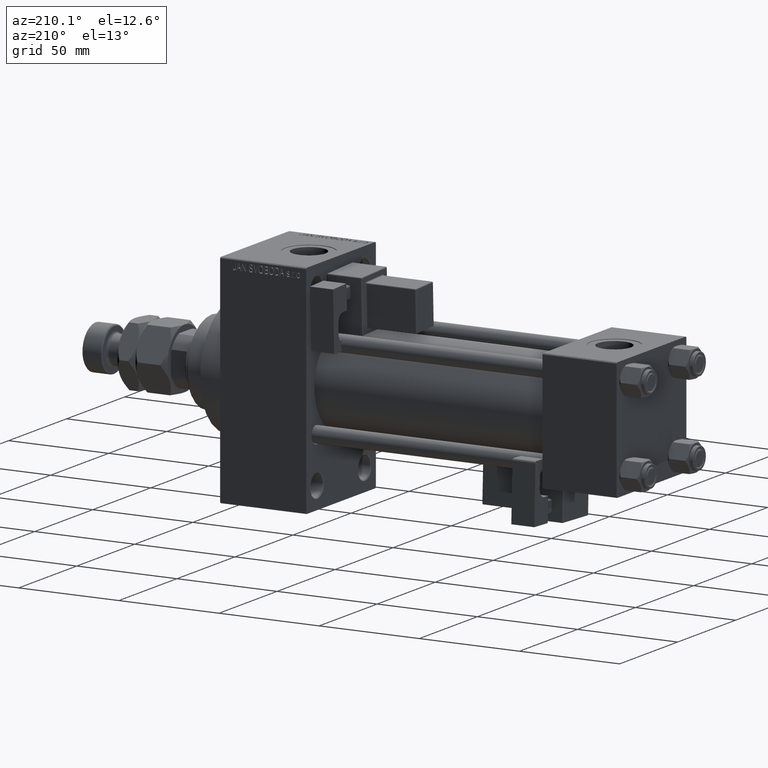
[diagram: clean part render]
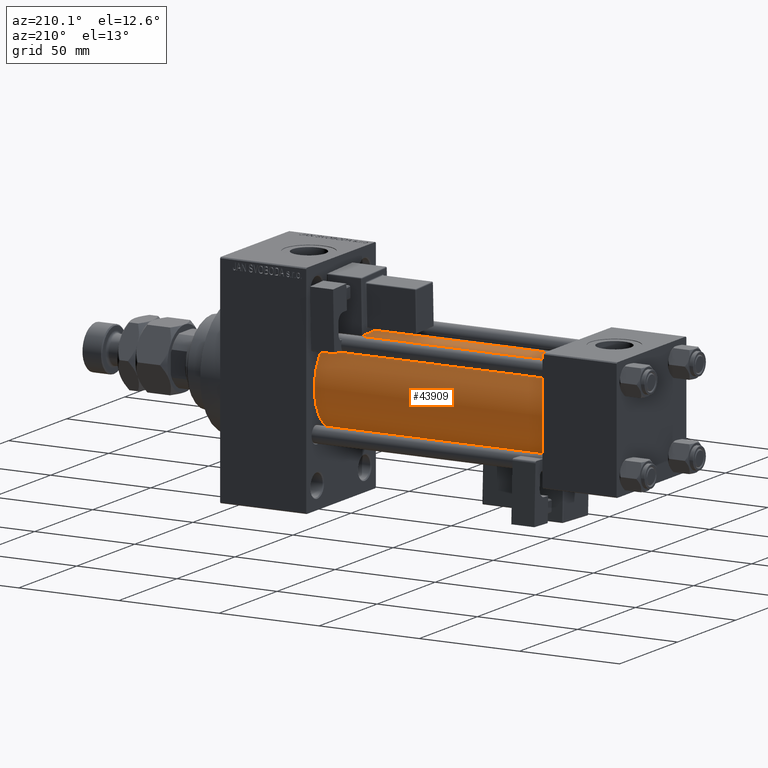
[diagram: same view with one face highlighted and labeled with its STEP entity id]
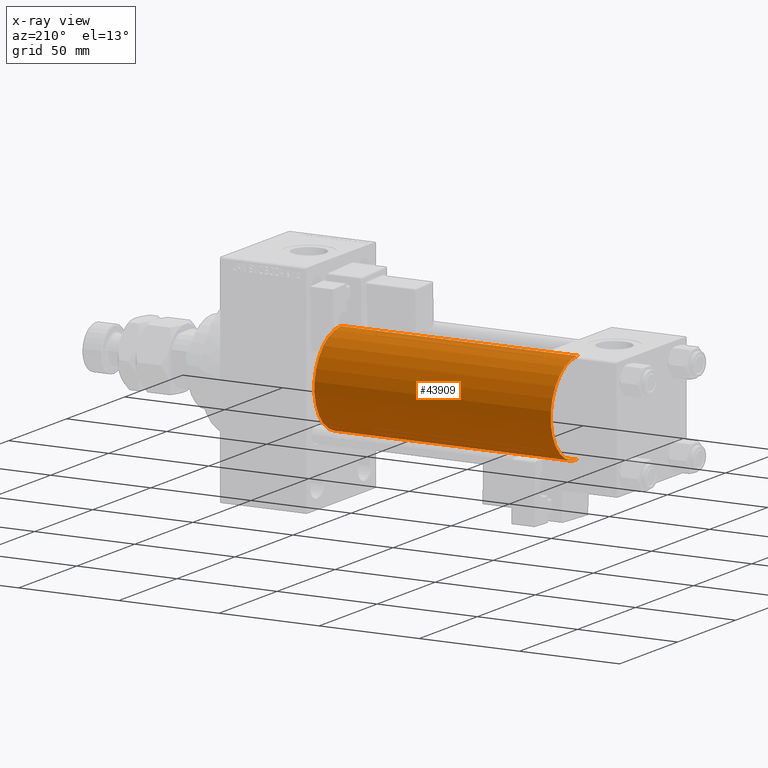
[diagram: x-ray of the same camera — body ghosted, the highlighted face saturated]
A machine part, auxiliary view. The second image highlights one B-rep face of the part: STEP entity #43909.
The next image is the same camera in x-ray: the body ghosted, the highlighted face saturated — about 0% of this face is hidden behind the body in this view.
In plain terms, the highlighted cylindrical surface (partial cylindrical patch) has radius 23 mm, axis along (-1, -0, -0).
Its self-contained STEP definition (entity closure, byte-faithful):
#201 = CARTESIAN_POINT ( 'NONE',  ( 155.0000000000000000, -2.602085213965210642E-15, 0.000000000000000000 ) ) ;
#3127 = EDGE_CURVE ( 'NONE', #23561, #37487, #39607, .T. ) ;
#3834 = EDGE_CURVE ( 'NONE', #37487, #28163, #11413, .T. ) ;
#3949 = AXIS2_PLACEMENT_3D ( 'NONE', #49096, #44934, #13732 ) ;
#6366 = VERTEX_POINT ( 'NONE', #49666 ) ;
#7235 = FACE_OUTER_BOUND ( 'NONE', #39315, .T. ) ;
#10951 = CARTESIAN_POINT ( 'NONE',  ( 37.00000000000000711, -2.602085213965210642E-15, 23.00000000000000000 ) ) ;
#11413 = CIRCLE ( 'NONE', #3949, 23.00000000000000000 ) ;
#12163 = DIRECTION ( 'NONE',  ( 1.000000000000000000, 0.000000000000000000, 0.000000000000000000 ) ) ;
#13732 = DIRECTION ( 'NONE',  ( 0.000000000000000000, 0.000000000000000000, 1.000000000000000000 ) ) ;
#15555 = DIRECTION ( 'NONE',  ( 0.000000000000000000, 0.000000000000000000, -1.000000000000000000 ) ) ;
#16056 = DIRECTION ( 'NONE',  ( -1.000000000000000000, -0.000000000000000000, -0.000000000000000000 ) ) ;
#16461 = CARTESIAN_POINT ( 'NONE',  ( 155.0000000000000000, 2.146024240737016609E-16, -23.00000000000000000 ) ) ;
#20107 = DIRECTION ( 'NONE',  ( -1.000000000000000000, -0.000000000000000000, -0.000000000000000000 ) ) ;
#20167 = LINE ( 'NONE', #24082, #48566 ) ;
#21469 = ORIENTED_EDGE ( 'NONE', *, *, #27250, .F. ) ;
#23116 = CYLINDRICAL_SURFACE ( 'NONE', #48380, 23.00000000000000000 ) ;
#23561 = VERTEX_POINT ( 'NONE', #27085 ) ;
#24082 = CARTESIAN_POINT ( 'NONE',  ( 155.0000000000000000, -2.602085213965210642E-15, 23.00000000000000000 ) ) ;
#24319 = ORIENTED_EDGE ( 'NONE', *, *, #3834, .T. ) ;
#27085 = CARTESIAN_POINT ( 'NONE',  ( 155.0000000000000000, 2.146024240737016609E-16, -23.00000000000000000 ) ) ;
#27250 = EDGE_CURVE ( 'NONE', #6366, #28163, #20167, .T. ) ;
#28163 = VERTEX_POINT ( 'NONE', #10951 ) ;
#30503 = VECTOR ( 'NONE', #20107, 1000.000000000000000 ) ;
#31865 = DIRECTION ( 'NONE',  ( -1.000000000000000000, -0.000000000000000000, -0.000000000000000000 ) ) ;
#33006 = ORIENTED_EDGE ( 'NONE', *, *, #44723, .F. ) ;
#34246 = ORIENTED_EDGE ( 'NONE', *, *, #3127, .T. ) ;
#35168 = AXIS2_PLACEMENT_3D ( 'NONE', #47786, #12163, #15555 ) ;
#37487 = VERTEX_POINT ( 'NONE', #50980 ) ;
#39204 = DIRECTION ( 'NONE',  ( 0.000000000000000000, 0.000000000000000000, 1.000000000000000000 ) ) ;
#39315 = EDGE_LOOP ( 'NONE', ( #33006, #34246, #24319, #21469 ) ) ;
#39607 = LINE ( 'NONE', #16461, #30503 ) ;
#43909 = ADVANCED_FACE ( 'NONE', ( #7235 ), #23116, .T. ) ;
#44723 = EDGE_CURVE ( 'NONE', #23561, #6366, #45108, .T. ) ;
#44934 = DIRECTION ( 'NONE',  ( 1.000000000000000000, -0.000000000000000000, 0.000000000000000000 ) ) ;
#45108 = CIRCLE ( 'NONE', #35168, 23.00000000000000000 ) ;
#47786 = CARTESIAN_POINT ( 'NONE',  ( 155.0000000000000000, -2.602085213965210642E-15, 0.000000000000000000 ) ) ;
#48380 = AXIS2_PLACEMENT_3D ( 'NONE', #201, #16056, #39204 ) ;
#48566 = VECTOR ( 'NONE', #31865, 1000.000000000000000 ) ;
#49096 = CARTESIAN_POINT ( 'NONE',  ( 37.00000000000000711, -2.602085213965210642E-15, 0.000000000000000000 ) ) ;
#49666 = CARTESIAN_POINT ( 'NONE',  ( 155.0000000000000000, -2.602085213965210642E-15, 23.00000000000000000 ) ) ;
#50980 = CARTESIAN_POINT ( 'NONE',  ( 37.00000000000000711, 2.146024240737016609E-16, -23.00000000000000000 ) ) ;